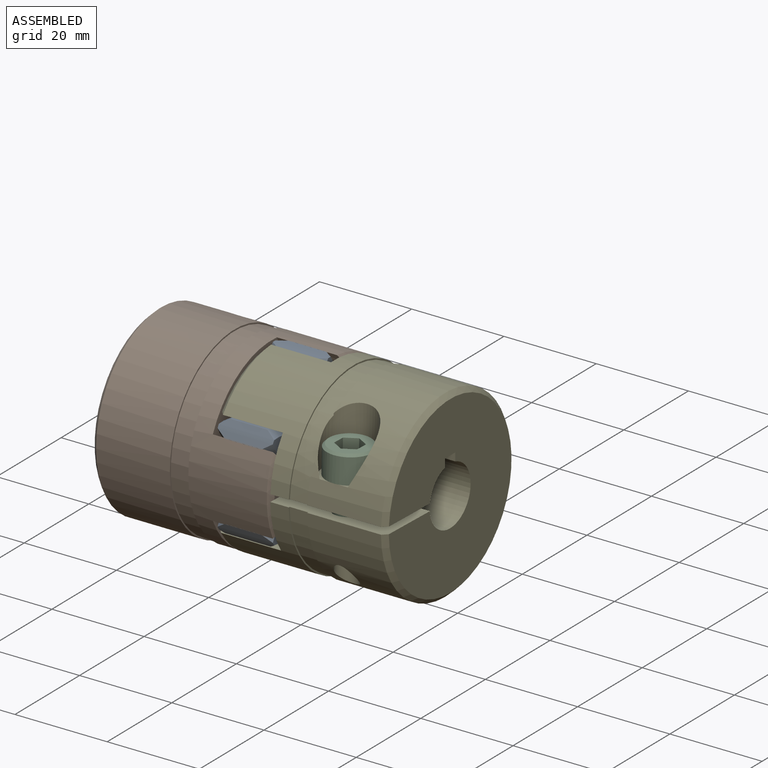
[diagram: assembled view]
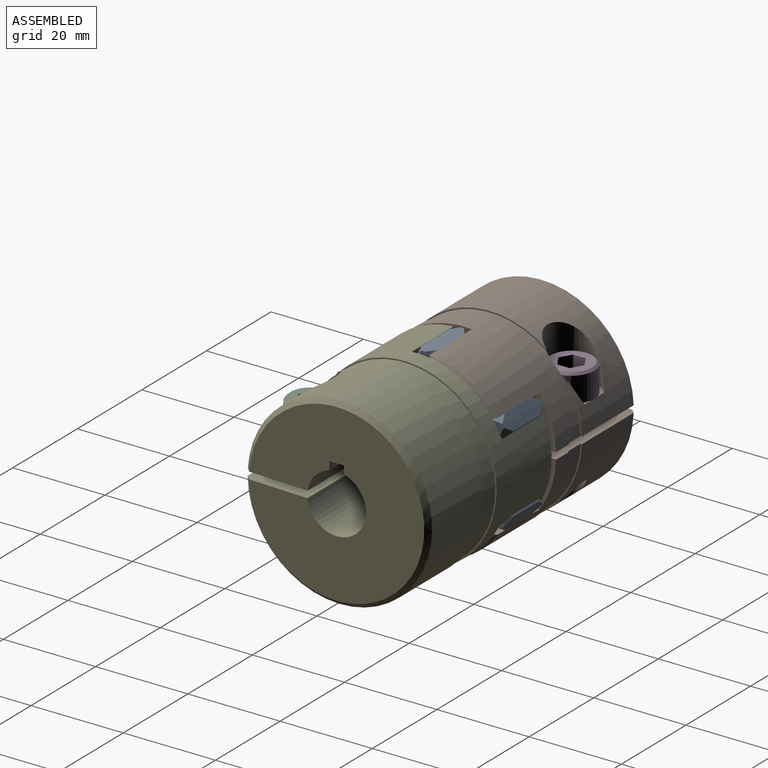
[diagram: assembled view, second angle]
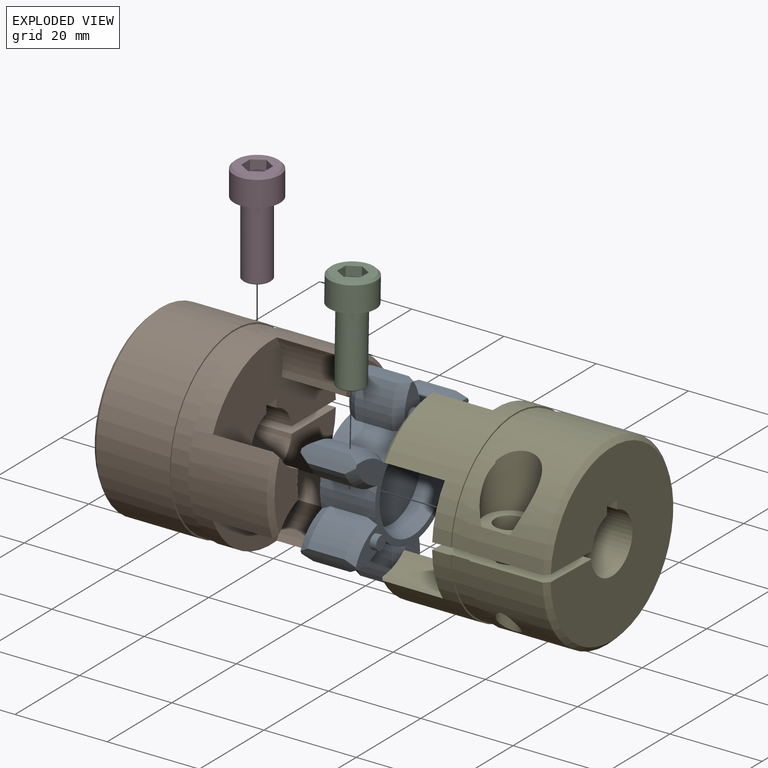
[diagram: exploded view]
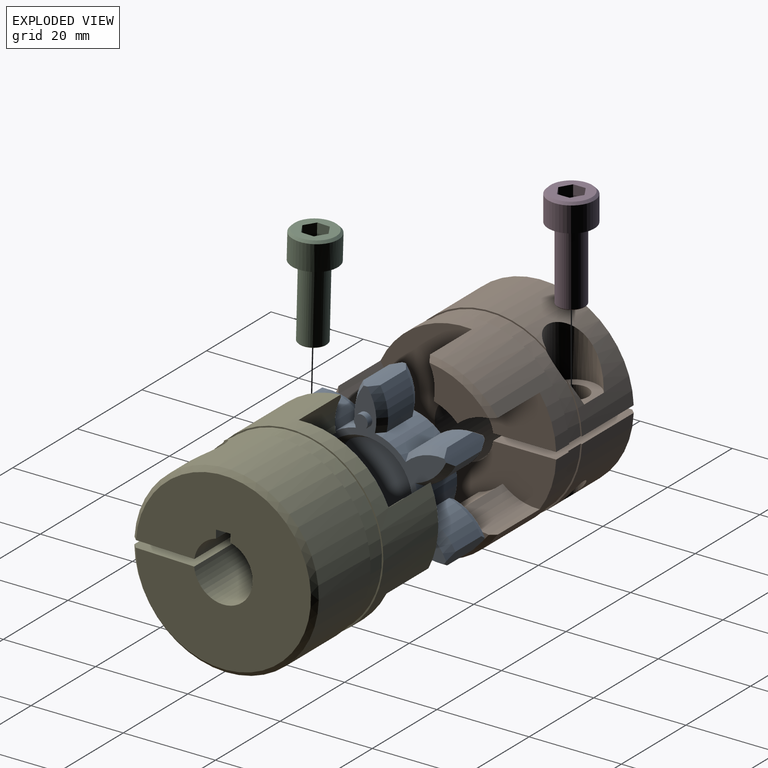
[diagram: exploded view, second angle]
ASSEMBLY  parts=5 mates=5
PART A: 68 faces, bbox 37.1x14.8x41.4 mm
  f0: plane 18x18mm, normal (0,-1,0), area 254.5mm2, adj f3
  f1: plane 3x3mm, normal (0,-1,0), area 7.1mm2, adj f5
  f2: plane 3x3mm, normal (0,-1,0), area 7.1mm2, adj f6
  f3: cylinder r=9mm len=18mm, axis (0,-1,0), area 141.4mm2, adj f0,f7
  f4: plane 3x3mm, normal (0,-1,0), area 7.1mm2, adj f8
  f5: cylinder r=1.5mm len=3mm, axis (0,-1,0), area 13.2mm2, adj f1,f36
  f6: cylinder r=1.5mm len=3mm, axis (0,-1,0), area 13.2mm2, adj f2,f36
  f7: cone r=9mm half-angle=30deg, axis (0,-1,0), area 139mm2, adj f3,f36
  f8: cylinder r=1.5mm len=3mm, axis (0,-1,0), area 13.2mm2, adj f4,f36
  f9: plane 18x18mm, normal (0,1,0), area 254.5mm2, adj f43
  f10: cone r=11.55mm half-angle=30deg, axis (0,1,0), area 21.2mm2, adj f36,f39,f40,f45
  f11: cone r=11.55mm half-angle=30deg, axis (0,1,0), area 21.2mm2, adj f12,f13,f36,f45
  f12: cylinder r=11.55mm len=8.37mm, axis (0,-1,0), area 73.7mm2, adj f11,f13,f45,f46
  f13: cylinder r=20mm len=12mm, axis (0,-1,0), area 38.3mm2, adj f11,f12,f14,f15,f36,f46,f47,f67
  f14: cylinder r=11.55mm len=8mm, axis (0,-1,0), area 73.7mm2, adj f13,f15,f47,f48
  f15: cone r=11.55mm half-angle=30deg, axis (0,1,0), area 21.2mm2, adj f13,f14,f36,f48
  f16: cone r=11.55mm half-angle=30deg, axis (0,1,0), area 21.2mm2, adj f17,f18,f36,f48
  f17: cylinder r=11.55mm len=8mm, axis (0,-1,0), area 73.7mm2, adj f16,f18,f48,f49
  f18: cylinder r=20mm len=12mm, axis (0,-1,0), area 38.3mm2, adj f16,f17,f19,f20,f36,f49,f50,f67
  f19: cylinder r=11.55mm len=8.37mm, axis (0,-1,0), area 73.7mm2, adj f18,f20,f50,f51
  f20: cone r=11.55mm half-angle=30deg, axis (0,1,0), area 21.2mm2, adj f18,f19,f36,f51
  f21: cone r=11.55mm half-angle=30deg, axis (0,1,0), area 21.2mm2, adj f22,f23,f36,f51
  f22: cylinder r=11.55mm len=8.87mm, axis (0,-1,0), area 73.7mm2, adj f21,f23,f51,f52
  f23: cylinder r=20mm len=12mm, axis (0,-1,0), area 38.3mm2, adj f21,f22,f24,f25,f36,f52,f53,f67
  f24: cylinder r=11.55mm len=8.87mm, axis (0,-1,0), area 73.7mm2, adj f23,f25,f53,f54
  f25: cone r=11.55mm half-angle=30deg, axis (0,1,0), area 21.2mm2, adj f23,f24,f36,f54
  f26: cone r=11.55mm half-angle=30deg, axis (0,1,0), area 21.2mm2, adj f27,f28,f36,f54
  f27: cylinder r=11.55mm len=8.37mm, axis (0,-1,0), area 73.7mm2, adj f26,f28,f54,f55
  f28: cylinder r=20mm len=12mm, axis (0,-1,0), area 38.3mm2, adj f26,f27,f29,f30,f36,f55,f56,f67
  f29: cylinder r=11.55mm len=8mm, axis (0,-1,0), area 73.7mm2, adj f28,f30,f56,f57
  f30: cone r=11.55mm half-angle=30deg, axis (0,1,0), area 21.2mm2, adj f28,f29,f36,f57
  f31: cone r=11.55mm half-angle=30deg, axis (0,1,0), area 21.2mm2, adj f32,f33,f36,f57
  f32: cylinder r=11.55mm len=8mm, axis (0,-1,0), area 73.7mm2, adj f31,f33,f57,f58
  f33: cylinder r=20mm len=12mm, axis (0,-1,0), area 38.3mm2, adj f31,f32,f34,f35,f36,f58,f59,f67
  f34: cylinder r=11.55mm len=8.37mm, axis (0,-1,0), area 73.7mm2, adj f33,f35,f59,f60
  f35: cone r=11.55mm half-angle=30deg, axis (0,1,0), area 21.2mm2, adj f33,f34,f36,f60
  f36: plane 40x35.02mm, normal (0,-1,0), area 266.3mm2, adj f5,f6,f7,f8,f10,f11,f13,f15
  f37: cone r=11.55mm half-angle=30deg, axis (0,1,0), area 21.2mm2, adj f36,f38,f39,f60
  f38: cylinder r=11.55mm len=8.87mm, axis (0,-1,0), area 73.7mm2, adj f37,f39,f60,f61
  f39: cylinder r=20mm len=12mm, axis (0,-1,0), area 38.3mm2, adj f10,f36,f37,f38,f40,f61,f62,f67
  f40: cylinder r=11.55mm len=8.87mm, axis (0,-1,0), area 73.7mm2, adj f10,f39,f45,f62
  f41: plane 3x3mm, normal (0,1,0), area 7.1mm2, adj f63
  f42: plane 3x3mm, normal (0,1,0), area 7.1mm2, adj f64
  f43: cylinder r=9mm len=18mm, axis (0,-1,0), area 141.4mm2, adj f9,f65
  f44: plane 3x3mm, normal (0,1,0), area 7.1mm2, adj f66
  f45: cylinder r=11.5mm len=12mm, axis (0,1,0), area 71.2mm2, adj f10,f11,f12,f36,f40,f46,f62,f67
  f46: cone r=10.39mm half-angle=30deg, axis (0,-1,0), area 21.2mm2, adj f12,f13,f45,f67
  f47: cone r=10.39mm half-angle=30deg, axis (0,-1,0), area 21.2mm2, adj f13,f14,f48,f67
  f48: cylinder r=11.5mm len=12mm, axis (0,1,0), area 71.2mm2, adj f14,f15,f16,f17,f36,f47,f49,f67
  f49: cone r=10.39mm half-angle=30deg, axis (0,-1,0), area 21.2mm2, adj f17,f18,f48,f67
  f50: cone r=10.39mm half-angle=30deg, axis (0,-1,0), area 21.2mm2, adj f18,f19,f51,f67
  f51: cylinder r=11.5mm len=12mm, axis (0,1,0), area 71.2mm2, adj f19,f20,f21,f22,f36,f50,f52,f67
  f52: cone r=10.39mm half-angle=30deg, axis (0,-1,0), area 21.2mm2, adj f22,f23,f51,f67
  f53: cone r=10.39mm half-angle=30deg, axis (0,-1,0), area 21.2mm2, adj f23,f24,f54,f67
  f54: cylinder r=11.5mm len=12mm, axis (0,1,0), area 71.2mm2, adj f24,f25,f26,f27,f36,f53,f55,f67
  f55: cone r=10.39mm half-angle=30deg, axis (0,-1,0), area 21.2mm2, adj f27,f28,f54,f67
  f56: cone r=10.39mm half-angle=30deg, axis (0,-1,0), area 21.2mm2, adj f28,f29,f57,f67
  f57: cylinder r=11.5mm len=12mm, axis (0,1,0), area 71.2mm2, adj f29,f30,f31,f32,f36,f56,f58,f67
  f58: cone r=10.39mm half-angle=30deg, axis (0,-1,0), area 21.2mm2, adj f32,f33,f57,f67
  f59: cone r=10.39mm half-angle=30deg, axis (0,-1,0), area 21.2mm2, adj f33,f34,f60,f67
  f60: cylinder r=11.5mm len=12mm, axis (0,1,0), area 71.2mm2, adj f34,f35,f36,f37,f38,f59,f61,f67
  f61: cone r=10.39mm half-angle=30deg, axis (0,-1,0), area 21.2mm2, adj f38,f39,f60,f67
  f62: cone r=10.39mm half-angle=30deg, axis (0,-1,0), area 21.2mm2, adj f39,f40,f45,f67
  f63: cylinder r=1.5mm len=3mm, axis (0,-1,0), area 13.2mm2, adj f41,f67
  f64: cylinder r=1.5mm len=3mm, axis (0,-1,0), area 13.2mm2, adj f42,f67
  f65: cone r=10.15mm half-angle=30deg, axis (0,1,0), area 139mm2, adj f43,f67
  f66: cylinder r=1.5mm len=3mm, axis (0,-1,0), area 13.2mm2, adj f44,f67
  f67: plane 40x35.02mm, normal (0,1,0), area 266.3mm2, adj f13,f18,f23,f28,f33,f39,f45,f46
PART B: 37 faces, bbox 40x39x40 mm
  f0: cylinder r=6.35mm len=25mm, axis (0,1,0), area 190.5mm2, adj f24,f30,f32,f34
  f1: plane 12.89x10.29mm, normal (0,-1,0), area 68.8mm2, adj f5,f10,f11,f12
  f2: plane 12.89x10.29mm, normal (0,-1,0), area 68.8mm2, adj f7,f13,f14,f15
  f3: plane 14.88x7.38mm, normal (0,-1,0), area 68.8mm2, adj f6,f8,f9,f16
  f4: plane 6.6x6.6mm, normal (0,0,1), area 16.1mm2, adj f22,f23
  f5: cylinder r=12mm len=14mm, axis (0,1,0), area 84.7mm2, adj f1,f10,f12,f24
  f6: cylinder r=12mm len=14mm, axis (0,1,0), area 84.7mm2, adj f3,f9,f16,f24
  f7: cylinder r=12mm len=14mm, axis (0,1,0), area 84.7mm2, adj f2,f13,f15,f24
  f8: cone r=19mm half-angle=45deg, axis (0,1,0), area 23.2mm2, adj f3,f9,f16,f25
  f9: cylinder r=11.45mm len=14mm, axis (0,1,0), area 121.3mm2, adj f3,f6,f8,f24,f25
  f10: cylinder r=11.45mm len=14mm, axis (0,1,0), area 121.3mm2, adj f1,f5,f11,f24,f25
  f11: cone r=19mm half-angle=45deg, axis (0,1,0), area 23.2mm2, adj f1,f10,f12,f25
  f12: cylinder r=11.45mm len=14mm, axis (0,1,0), area 121.3mm2, adj f1,f5,f11,f24,f25
  f13: cylinder r=11.45mm len=14mm, axis (0,1,0), area 121.3mm2, adj f2,f7,f14,f24,f25
  f14: cone r=19mm half-angle=45deg, axis (0,1,0), area 23.2mm2, adj f2,f13,f15,f25
  f15: cylinder r=11.45mm len=14mm, axis (0,1,0), area 121.3mm2, adj f2,f7,f14,f24,f25
  f16: cylinder r=11.45mm len=14mm, axis (0,1,0), area 121.3mm2, adj f3,f6,f8,f24,f25
  f17: plane 40x39.99mm, normal (0,1,0), area 37mm2, adj f25,f26,f29,f30
  f18: plane 40x39.99mm, normal (0,-1,0), area 31.8mm2, adj f21,f26,f28,f29
  f19: plane 10.12x3.19mm, normal (0,-1,0), area 3.1mm2, adj f21,f26,f28,f30
  f20: plane 11x10.08mm, normal (0,0,1), area 57mm2, adj f21,f27,f28
  f21: cylinder r=5.5mm len=11.86mm, axis (0,0,1), area 226.2mm2, adj f18,f19,f20,f26,f28
  f22: cylinder r=2.4mm len=14.42mm, axis (0,0,-1), area 181.6mm2, adj f4,f28
  f23: cylinder r=3.3mm len=6.6mm, axis (0,0,-1), area 15.6mm2, adj f4,f29
  f24: plane 40x38.1mm, normal (0,-1,0), area 848.6mm2, adj f0,f5,f6,f7,f9,f10,f12,f13
  f25: cylinder r=20mm len=40mm, axis (0,1,0), area 1180.1mm2, adj f8,f9,f10,f11,f12,f13,f14,f15
  f26: cylinder r=19.7mm len=39.4mm, axis (0,-1,0), area 486.8mm2, adj f17,f18,f19,f21,f29,f30
  f27: cylinder r=3.3mm len=6.6mm, axis (0,0,-1), area 108.9mm2, adj f20,f30
  f28: cylinder r=20mm len=40mm, axis (0,1,0), area 1818.1mm2, adj f18,f19,f20,f21,f22,f29,f30,f31
  f29: plane 25x13.68mm, normal (0,0,1), area 306.1mm2, adj f17,f18,f23,f24,f25,f26,f28,f31
  f30: plane 25x13.68mm, normal (0,0,-1), area 306.1mm2, adj f0,f17,f19,f24,f25,f26,f27,f28
  f31: cone r=20mm half-angle=45deg, axis (0,-1,0), area 171.1mm2, adj f28,f29,f30,f32
  f32: plane 38x37.99mm, normal (0,1,0), area 983.2mm2, adj f0,f29,f30,f31,f33,f34,f35,f36
  f33: cylinder r=6.35mm len=25mm, axis (0,1,0), area 689.2mm2, adj f24,f29,f32,f35
  f34: plane 25x1.79mm, normal (-1,0,0), area 44.7mm2, adj f0,f24,f32,f36
  f35: plane 25x1.79mm, normal (1,0,0), area 44.7mm2, adj f24,f32,f33,f36
  f36: plane 25x3.18mm, normal (0,0,-1), area 79.4mm2, adj f24,f32,f34,f35
PART C: 14 faces, bbox 10.1x10x22.2 mm
  f0: plane 5.7x5mm, normal (0.03,0,1), area 21.1mm2, adj f1,f2,f3,f4,f5,f6
  f1: plane 3.04x2.5mm, normal (-0.86,-0.51,0.02), area 8.7mm2, adj f0,f2,f6,f7
  f2: plane 3.07x2.81mm, normal (0,-1,0), area 8.2mm2, adj f0,f1,f3,f7
  f3: plane 3.04x2.5mm, normal (0.86,-0.51,-0.02), area 8.7mm2, adj f0,f2,f4,f7
  f4: plane 3.04x2.5mm, normal (0.86,0.51,-0.02), area 8.7mm2, adj f0,f3,f5,f7
  f5: plane 3.07x2.81mm, normal (0,1,0), area 8.2mm2, adj f0,f4,f6,f7
  f6: plane 3.04x2.5mm, normal (-0.86,0.51,0.02), area 8.7mm2, adj f0,f1,f5,f7
  f7: plane 8.98x8.98mm, normal (0.03,0,1), area 42.3mm2, adj f1,f2,f3,f4,f5,f6,f13
  f8: cylinder r=5mm len=10.14mm, axis (-0.03,0,-1), area 172.5mm2, adj f9,f13
  f9: plane 10x10mm, normal (-0.03,0,-1), area 50.3mm2, adj f8,f10
  f10: cylinder r=3mm len=15.98mm, axis (-0.03,0,-1), area 298.5mm2, adj f9,f11
  f11: cone r=3mm half-angle=45deg, axis (0.03,0,1), area 4.3mm2, adj f10,f12
  f12: plane 5.67x5.66mm, normal (-0.03,0,-1), area 25.2mm2, adj f11
  f13: cone r=4.49mm half-angle=45deg, axis (-0.03,0,-1), area 21.4mm2, adj f7,f8
PART D: 14 faces, bbox 10x10x22 mm
  f0: plane 5.7x5mm, normal (0,0,1), area 21.1mm2, adj f1,f2,f3,f4,f5,f6
  f1: plane 3x2.5mm, normal (-0.86,-0.51,0), area 8.7mm2, adj f0,f2,f6,f7
  f2: plane 3x2.74mm, normal (0,-1,0), area 8.2mm2, adj f0,f1,f3,f7
  f3: plane 3x2.5mm, normal (0.86,-0.51,0), area 8.7mm2, adj f0,f2,f4,f7
  f4: plane 3x2.5mm, normal (0.86,0.51,0), area 8.7mm2, adj f0,f3,f5,f7
  f5: plane 3x2.74mm, normal (0,1,0), area 8.2mm2, adj f0,f4,f6,f7
  f6: plane 3x2.5mm, normal (-0.86,0.51,0), area 8.7mm2, adj f0,f1,f5,f7
  f7: plane 8.98x8.98mm, normal (0,0,1), area 42.3mm2, adj f1,f2,f3,f4,f5,f6,f13
  f8: cylinder r=5mm len=10mm, axis (0,0,-1), area 172.5mm2, adj f9,f13
  f9: plane 10x10mm, normal (0,0,-1), area 50.3mm2, adj f8,f10
  f10: cylinder r=3mm len=15.83mm, axis (0,0,-1), area 298.5mm2, adj f9,f11
  f11: cone r=3mm half-angle=45deg, axis (0,0,1), area 4.3mm2, adj f10,f12
  f12: plane 5.67x5.67mm, normal (0,0,-1), area 25.2mm2, adj f11
  f13: cone r=4.49mm half-angle=45deg, axis (0,0,-1), area 21.4mm2, adj f7,f8
PART E: 37 faces, bbox 40x39x40 mm
  f0: cylinder r=6.35mm len=25mm, axis (0,-1,0), area 186.4mm2, adj f24,f30,f32,f34
  f1: plane 12.69x10.45mm, normal (0,1,0), area 68.8mm2, adj f5,f10,f11,f12
  f2: plane 13.07x10.13mm, normal (0,1,0), area 68.8mm2, adj f7,f13,f14,f15
  f3: plane 14.87x7.46mm, normal (0,1,0), area 68.8mm2, adj f6,f8,f9,f16
  f4: plane 6.6x6.6mm, normal (0.03,0,1), area 16.1mm2, adj f22,f23
  f5: cylinder r=12mm len=14mm, axis (0,-1,0), area 84.7mm2, adj f1,f10,f12,f24
  f6: cylinder r=12mm len=14mm, axis (0,-1,0), area 84.7mm2, adj f3,f9,f16,f24
  f7: cylinder r=12mm len=14mm, axis (0,-1,0), area 84.7mm2, adj f2,f13,f15,f24
  f8: cone r=19mm half-angle=45deg, axis (0,-1,0), area 23.2mm2, adj f3,f9,f16,f25
  f9: cylinder r=11.45mm len=14mm, axis (0,-1,0), area 121.3mm2, adj f3,f6,f8,f24,f25
  f10: cylinder r=11.45mm len=14mm, axis (0,-1,0), area 121.3mm2, adj f1,f5,f11,f24,f25
  f11: cone r=19mm half-angle=45deg, axis (0,-1,0), area 23.2mm2, adj f1,f10,f12,f25
  f12: cylinder r=11.45mm len=14mm, axis (0,-1,0), area 121.3mm2, adj f1,f5,f11,f24,f25
  f13: cylinder r=11.45mm len=14mm, axis (0,-1,0), area 121.3mm2, adj f2,f7,f14,f24,f25
  f14: cone r=19mm half-angle=45deg, axis (0,-1,0), area 23.2mm2, adj f2,f13,f15,f25
  f15: cylinder r=11.45mm len=14mm, axis (0,-1,0), area 121.3mm2, adj f2,f7,f14,f24,f25
  f16: cylinder r=11.45mm len=14mm, axis (0,-1,0), area 121.3mm2, adj f3,f6,f8,f24,f25
  f17: plane 40x40mm, normal (0,-1,0), area 37mm2, adj f25,f26,f29,f30
  f18: plane 40x40mm, normal (0,1,0), area 31.8mm2, adj f21,f26,f28,f29
  f19: plane 10.04x3.45mm, normal (0,1,0), area 3.1mm2, adj f21,f26,f28,f30
  f20: plane 11x10.08mm, normal (0.03,0,1), area 57mm2, adj f21,f27,f28
  f21: cylinder r=5.5mm len=12.12mm, axis (0.03,0,1), area 226.2mm2, adj f18,f19,f20,f26,f28
  f22: cylinder r=2.4mm len=14.54mm, axis (-0.03,0,-1), area 181.6mm2, adj f4,f28
  f23: cylinder r=3.3mm len=6.62mm, axis (-0.03,0,-1), area 15.6mm2, adj f4,f29
  f24: plane 40x38.32mm, normal (0,1,0), area 848.6mm2, adj f0,f5,f6,f7,f9,f10,f12,f13
  f25: cylinder r=20mm len=40mm, axis (0,-1,0), area 1180.1mm2, adj f8,f9,f10,f11,f12,f13,f14,f15
  f26: cylinder r=19.7mm len=39.4mm, axis (0,1,0), area 486.8mm2, adj f17,f18,f19,f21,f29,f30
  f27: cylinder r=3.3mm len=6.73mm, axis (-0.03,0,-1), area 108.9mm2, adj f20,f30
  f28: cylinder r=20mm len=40mm, axis (0,-1,0), area 1818.1mm2, adj f18,f19,f20,f21,f22,f29,f30,f31
  f29: plane 25x13.68mm, normal (0.03,0,1), area 306.1mm2, adj f17,f18,f23,f24,f25,f26,f28,f31
  f30: plane 25x13.68mm, normal (-0.03,0,-1), area 306.1mm2, adj f0,f17,f19,f24,f25,f26,f27,f28
  f31: cone r=20mm half-angle=45deg, axis (0,1,0), area 171.1mm2, adj f28,f29,f30,f32
  f32: plane 38x38mm, normal (0,-1,0), area 983.2mm2, adj f0,f29,f30,f31,f33,f34,f35,f36
  f33: cylinder r=6.35mm len=25mm, axis (0,-1,0), area 693.3mm2, adj f24,f29,f32,f35
  f34: plane 25x1.79mm, normal (1,0,0), area 44.7mm2, adj f0,f24,f32,f36
  f35: plane 25x1.79mm, normal (-1,0,0), area 44.7mm2, adj f24,f32,f33,f36
  f36: plane 25x3.18mm, normal (0,0,-1), area 79.4mm2, adj f24,f32,f34,f35
PLACE A rot(axis=(0,0,1),90deg) t=(4.49,2.41,1.69)mm
PLACE B rot(axis=(0,0,1),90deg) t=(5.29,2.41,1.69)mm fixed
PLACE C rot(axis=(0,0,1),90deg) t=(4.49,2.42,1.74)mm
PLACE D rot(axis=(0,0,1),90deg) t=(5.29,2.08,1.69)mm
PLACE E rot(axis=(0,0,1),90deg) t=(4.49,2.09,1.74)mm
MATE fastened D.f10 <-> B.f20  axis (0,0,-1) through (-15.11,16.58,7.69)mm
MATE planar A.f8 <-> B.f2  axis (1,0,0) through (11.89,2.41,15.19)mm
MATE slider A.f13 <-> B.f0  axis (-1,0,0) through (-1.51,2.41,1.69)mm
MATE fastened E.f24 <-> B.f26  axis (-1,0,0) through (11.89,2.41,1.69)mm
MATE fastened C.f10 <-> E.f20  axis (0,-0.03,-1) through (24.89,-11.92,8.11)mm
